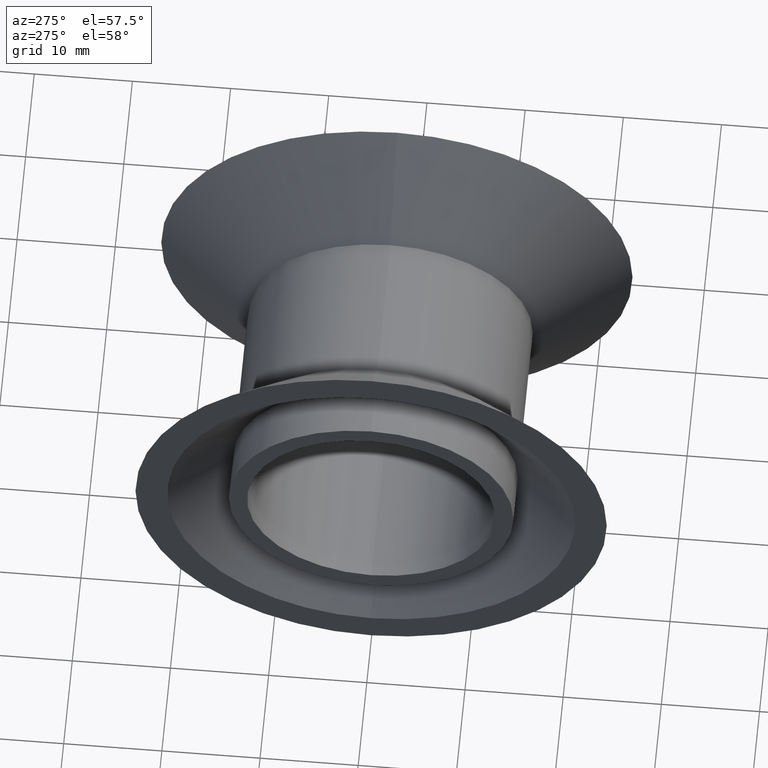
[diagram: clean part render]
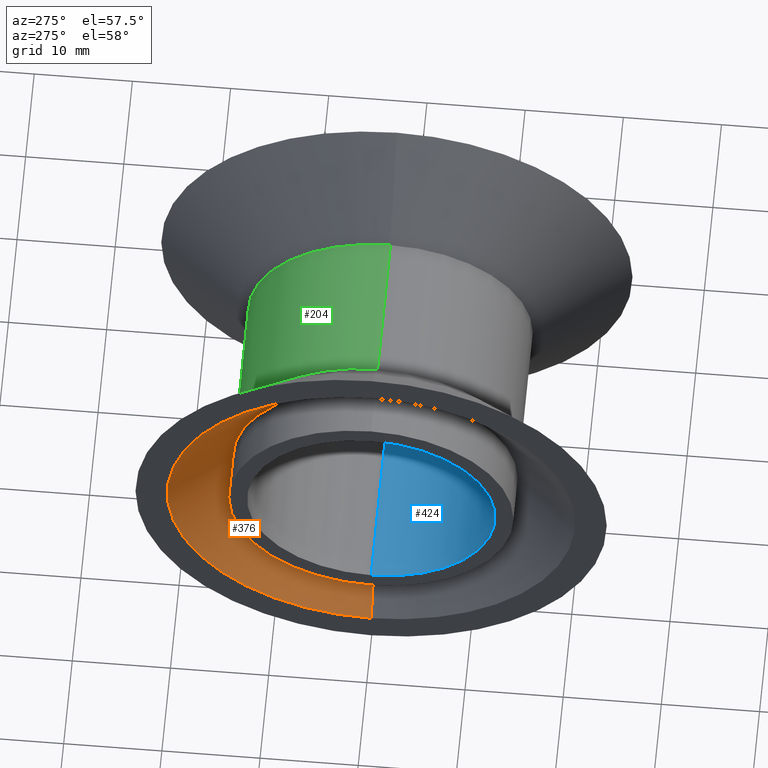
[diagram: same view with three faces highlighted in distinct colors, each labeled with its STEP entity id]
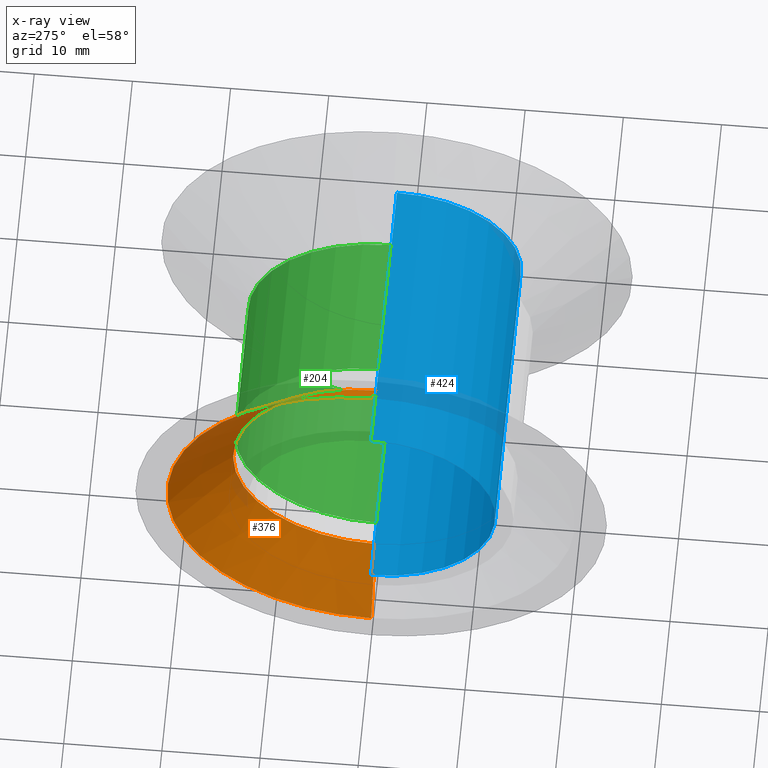
[diagram: x-ray of the same camera — body ghosted, the three highlighted faces saturated]
A machine part, auxiliary view with three faces highlighted in distinct colors.
The next image is the same camera in x-ray (body ghosted, the three faces saturated) — at least one of them is partly hidden behind the body in this view.
Their STEP definitions:

[orange] entity #376 — the highlighted conical surface has half-angle 51.71 deg.
#50 = AXIS2_PLACEMENT_3D ( 'NONE', #236, #413, #189 ) ;
#57 = DIRECTION ( 'NONE',  ( -0.6196442885790198751, 0.0000000000000000000, 0.7848827655334268405 ) ) ;
#66 = CIRCLE ( 'NONE', #336, 20.77234175015728823 ) ;
#102 = CARTESIAN_POINT ( 'NONE',  ( -14.99999999999999467, 0.0000000000000000000, 20.77234175015728823 ) ) ;
#107 = DIRECTION ( 'NONE',  ( 0.0000000000000000000, 0.0000000000000000000, 1.000000000000000000 ) ) ;
#143 = FACE_OUTER_BOUND ( 'NONE', #234, .T. ) ;
#188 = AXIS2_PLACEMENT_3D ( 'NONE', #333, #241, #107 ) ;
#189 = DIRECTION ( 'NONE',  ( 0.0000000000000000000, 0.0000000000000000000, 1.000000000000000000 ) ) ;
#225 = EDGE_CURVE ( 'NONE', #255, #271, #540, .T. ) ;
#226 = VECTOR ( 'NONE', #293, 1000.000000000000114 ) ;
#232 = ORIENTED_EDGE ( 'NONE', *, *, #274, .F. ) ;
#234 = EDGE_LOOP ( 'NONE', ( #242, #232, #370, #317 ) ) ;
#236 = CARTESIAN_POINT ( 'NONE',  ( -10.04815124987582031, 0.0000000000000000000, 0.0000000000000000000 ) ) ;
#241 = DIRECTION ( 'NONE',  ( -1.000000000000000000, -0.0000000000000000000, -0.0000000000000000000 ) ) ;
#242 = ORIENTED_EDGE ( 'NONE', *, *, #477, .F. ) ;
#252 = CARTESIAN_POINT ( 'NONE',  ( -14.99999999999999467, 2.543878183512505106E-15, -20.77234175015728823 ) ) ;
#255 = VERTEX_POINT ( 'NONE', #456 ) ;
#271 = VERTEX_POINT ( 'NONE', #545 ) ;
#274 = EDGE_CURVE ( 'NONE', #255, #365, #286, .T. ) ;
#276 = CARTESIAN_POINT ( 'NONE',  ( -14.99999999999999467, 0.0000000000000000000, 0.0000000000000000000 ) ) ;
#286 = CIRCLE ( 'NONE', #50, 14.49999999999998757 ) ;
#293 = DIRECTION ( 'NONE',  ( -0.6196442885790198751, 9.612041665164336132E-17, -0.7848827655334268405 ) ) ;
#317 = ORIENTED_EDGE ( 'NONE', *, *, #550, .T. ) ;
#333 = CARTESIAN_POINT ( 'NONE',  ( -14.99999999999999467, 0.0000000000000000000, 0.0000000000000000000 ) ) ;
#336 = AXIS2_PLACEMENT_3D ( 'NONE', #276, #353, #349 ) ;
#349 = DIRECTION ( 'NONE',  ( 0.0000000000000000000, 0.0000000000000000000, 1.000000000000000000 ) ) ;
#353 = DIRECTION ( 'NONE',  ( -1.000000000000000000, -0.0000000000000000000, -0.0000000000000000000 ) ) ;
#365 = VERTEX_POINT ( 'NONE', #373 ) ;
#370 = ORIENTED_EDGE ( 'NONE', *, *, #225, .T. ) ;
#373 = CARTESIAN_POINT ( 'NONE',  ( -10.04815124987582031, 2.159808021138082771E-15, -14.49999999999998757 ) ) ;
#376 = ADVANCED_FACE ( 'NONE', ( #143 ), #471, .F. ) ;
#413 = DIRECTION ( 'NONE',  ( -1.000000000000000000, -0.0000000000000000000, -0.0000000000000000000 ) ) ;
#441 = LINE ( 'NONE', #252, #226 ) ;
#456 = CARTESIAN_POINT ( 'NONE',  ( -10.04815124987582031, 0.0000000000000000000, 14.49999999999998757 ) ) ;
#470 = CARTESIAN_POINT ( 'NONE',  ( -14.99999999999999467, 2.543878183512505106E-15, -20.77234175015728823 ) ) ;
#471 = CONICAL_SURFACE ( 'NONE', #188, 20.77234175015728823, 0.9025069079643135428 ) ;
#477 = EDGE_CURVE ( 'NONE', #365, #531, #441, .T. ) ;
#511 = VECTOR ( 'NONE', #57, 1000.000000000000114 ) ;
#531 = VERTEX_POINT ( 'NONE', #470 ) ;
#540 = LINE ( 'NONE', #102, #511 ) ;
#545 = CARTESIAN_POINT ( 'NONE',  ( -14.99999999999999467, 0.0000000000000000000, 20.77234175015728823 ) ) ;
#550 = EDGE_CURVE ( 'NONE', #271, #531, #66, .T. ) ;

[blue] entity #424 — the highlighted cylindrical surface (partial cylindrical patch) has radius 12.65 mm, axis along (-1, -0, -0).
#26 = CYLINDRICAL_SURFACE ( 'NONE', #140, 12.65000000000000036 ) ;
#35 = VERTEX_POINT ( 'NONE', #313 ) ;
#47 = CARTESIAN_POINT ( 'NONE',  ( 0.0000000000000000000, 1.549178200921401754E-15, -12.65000000000000036 ) ) ;
#62 = ORIENTED_EDGE ( 'NONE', *, *, #218, .T. ) ;
#84 = EDGE_CURVE ( 'NONE', #35, #448, #543, .T. ) ;
#96 = FACE_OUTER_BOUND ( 'NONE', #300, .T. ) ;
#97 = DIRECTION ( 'NONE',  ( 0.0000000000000000000, 0.0000000000000000000, 1.000000000000000000 ) ) ;
#118 = CARTESIAN_POINT ( 'NONE',  ( -15.00000000000000000, 0.0000000000000000000, 0.0000000000000000000 ) ) ;
#140 = AXIS2_PLACEMENT_3D ( 'NONE', #463, #510, #161 ) ;
#161 = DIRECTION ( 'NONE',  ( 0.0000000000000000000, 0.0000000000000000000, 1.000000000000000000 ) ) ;
#162 = CIRCLE ( 'NONE', #297, 12.65000000000000036 ) ;
#168 = LINE ( 'NONE', #547, #254 ) ;
#186 = DIRECTION ( 'NONE',  ( -1.000000000000000000, -0.0000000000000000000, -0.0000000000000000000 ) ) ;
#209 = ORIENTED_EDGE ( 'NONE', *, *, #451, .F. ) ;
#216 = AXIS2_PLACEMENT_3D ( 'NONE', #338, #559, #438 ) ;
#218 = EDGE_CURVE ( 'NONE', #448, #572, #162, .T. ) ;
#248 = EDGE_CURVE ( 'NONE', #476, #572, #168, .T. ) ;
#250 = CARTESIAN_POINT ( 'NONE',  ( 15.00000000000000000, 0.0000000000000000000, 12.65000000000000036 ) ) ;
#254 = VECTOR ( 'NONE', #186, 1000.000000000000000 ) ;
#292 = CARTESIAN_POINT ( 'NONE',  ( -15.00000000000000000, 0.0000000000000000000, 12.65000000000000036 ) ) ;
#296 = CIRCLE ( 'NONE', #216, 12.65000000000000036 ) ;
#297 = AXIS2_PLACEMENT_3D ( 'NONE', #118, #436, #97 ) ;
#300 = EDGE_LOOP ( 'NONE', ( #209, #332, #62, #356 ) ) ;
#313 = CARTESIAN_POINT ( 'NONE',  ( 15.00000000000000000, 1.549178200921401754E-15, -12.65000000000000036 ) ) ;
#332 = ORIENTED_EDGE ( 'NONE', *, *, #84, .T. ) ;
#338 = CARTESIAN_POINT ( 'NONE',  ( 15.00000000000000000, 0.0000000000000000000, 0.0000000000000000000 ) ) ;
#356 = ORIENTED_EDGE ( 'NONE', *, *, #248, .F. ) ;
#424 = ADVANCED_FACE ( 'NONE', ( #96 ), #26, .F. ) ;
#433 = VECTOR ( 'NONE', #483, 1000.000000000000000 ) ;
#436 = DIRECTION ( 'NONE',  ( -1.000000000000000000, -0.0000000000000000000, -0.0000000000000000000 ) ) ;
#438 = DIRECTION ( 'NONE',  ( 0.0000000000000000000, 0.0000000000000000000, 1.000000000000000000 ) ) ;
#448 = VERTEX_POINT ( 'NONE', #502 ) ;
#451 = EDGE_CURVE ( 'NONE', #35, #476, #296, .T. ) ;
#463 = CARTESIAN_POINT ( 'NONE',  ( 0.0000000000000000000, 0.0000000000000000000, 0.0000000000000000000 ) ) ;
#476 = VERTEX_POINT ( 'NONE', #250 ) ;
#483 = DIRECTION ( 'NONE',  ( -1.000000000000000000, -0.0000000000000000000, -0.0000000000000000000 ) ) ;
#502 = CARTESIAN_POINT ( 'NONE',  ( -15.00000000000000000, 1.549178200921401754E-15, -12.65000000000000036 ) ) ;
#510 = DIRECTION ( 'NONE',  ( -1.000000000000000000, -0.0000000000000000000, -0.0000000000000000000 ) ) ;
#543 = LINE ( 'NONE', #47, #433 ) ;
#547 = CARTESIAN_POINT ( 'NONE',  ( 0.0000000000000000000, 0.0000000000000000000, 12.65000000000000036 ) ) ;
#559 = DIRECTION ( 'NONE',  ( -1.000000000000000000, -0.0000000000000000000, -0.0000000000000000000 ) ) ;
#572 = VERTEX_POINT ( 'NONE', #292 ) ;

[green] entity #204 — the highlighted cylindrical surface (partial cylindrical patch) has radius 14.5 mm, axis along (-1, -0, -0).
#16 = CARTESIAN_POINT ( 'NONE',  ( 0.0000000000000000000, 0.0000000000000000000, 14.49999999999999822 ) ) ;
#37 = CARTESIAN_POINT ( 'NONE',  ( 0.0000000000000000000, 0.0000000000000000000, 0.0000000000000000000 ) ) ;
#40 = CIRCLE ( 'NONE', #492, 14.49999999999999822 ) ;
#42 = DIRECTION ( 'NONE',  ( 0.0000000000000000000, 0.0000000000000000000, 1.000000000000000000 ) ) ;
#43 = EDGE_CURVE ( 'NONE', #390, #243, #443, .T. ) ;
#48 = LINE ( 'NONE', #275, #67 ) ;
#51 = ORIENTED_EDGE ( 'NONE', *, *, #266, .T. ) ;
#52 = CARTESIAN_POINT ( 'NONE',  ( 7.500000000000000000, 2.357445088358654363E-15, 14.49999999999999822 ) ) ;
#64 = CARTESIAN_POINT ( 'NONE',  ( -7.500000000000000000, 0.0000000000000000000, 14.49999999999999822 ) ) ;
#67 = VECTOR ( 'NONE', #371, 1000.000000000000000 ) ;
#89 = DIRECTION ( 'NONE',  ( 0.0000000000000000000, 0.0000000000000000000, 1.000000000000000000 ) ) ;
#99 = DIRECTION ( 'NONE',  ( 0.0000000000000000000, 0.0000000000000000000, 1.000000000000000000 ) ) ;
#128 = DIRECTION ( 'NONE',  ( -1.000000000000000000, -0.0000000000000000000, -0.0000000000000000000 ) ) ;
#147 = CARTESIAN_POINT ( 'NONE',  ( 7.500000000000000000, 0.0000000000000000000, -14.49999999999999822 ) ) ;
#149 = ORIENTED_EDGE ( 'NONE', *, *, #43, .F. ) ;
#204 = ADVANCED_FACE ( 'NONE', ( #377 ), #268, .T. ) ;
#208 = ORIENTED_EDGE ( 'NONE', *, *, #301, .T. ) ;
#235 = CARTESIAN_POINT ( 'NONE',  ( 7.500000000000000000, 0.0000000000000000000, 0.0000000000000000000 ) ) ;
#243 = VERTEX_POINT ( 'NONE', #270 ) ;
#263 = LINE ( 'NONE', #16, #393 ) ;
#265 = EDGE_LOOP ( 'NONE', ( #208, #51, #149, #278 ) ) ;
#266 = EDGE_CURVE ( 'NONE', #291, #243, #48, .T. ) ;
#268 = CYLINDRICAL_SURFACE ( 'NONE', #514, 14.49999999999999822 ) ;
#270 = CARTESIAN_POINT ( 'NONE',  ( -7.500000000000000000, 1.775737858763662015E-15, -14.49999999999999822 ) ) ;
#275 = CARTESIAN_POINT ( 'NONE',  ( 0.0000000000000000000, 1.775737858763662015E-15, -14.49999999999999822 ) ) ;
#278 = ORIENTED_EDGE ( 'NONE', *, *, #460, .F. ) ;
#291 = VERTEX_POINT ( 'NONE', #147 ) ;
#301 = EDGE_CURVE ( 'NONE', #302, #291, #40, .T. ) ;
#302 = VERTEX_POINT ( 'NONE', #52 ) ;
#316 = CARTESIAN_POINT ( 'NONE',  ( -7.500000000000000000, 0.0000000000000000000, 0.0000000000000000000 ) ) ;
#340 = AXIS2_PLACEMENT_3D ( 'NONE', #316, #359, #89 ) ;
#359 = DIRECTION ( 'NONE',  ( -1.000000000000000000, -0.0000000000000000000, -0.0000000000000000000 ) ) ;
#371 = DIRECTION ( 'NONE',  ( -1.000000000000000000, -0.0000000000000000000, -0.0000000000000000000 ) ) ;
#377 = FACE_OUTER_BOUND ( 'NONE', #265, .T. ) ;
#390 = VERTEX_POINT ( 'NONE', #64 ) ;
#391 = DIRECTION ( 'NONE',  ( -1.000000000000000000, -0.0000000000000000000, -0.0000000000000000000 ) ) ;
#393 = VECTOR ( 'NONE', #391, 1000.000000000000000 ) ;
#416 = DIRECTION ( 'NONE',  ( -1.000000000000000000, -0.0000000000000000000, -0.0000000000000000000 ) ) ;
#443 = CIRCLE ( 'NONE', #340, 14.49999999999999822 ) ;
#460 = EDGE_CURVE ( 'NONE', #302, #390, #263, .T. ) ;
#492 = AXIS2_PLACEMENT_3D ( 'NONE', #235, #416, #99 ) ;
#514 = AXIS2_PLACEMENT_3D ( 'NONE', #37, #128, #42 ) ;